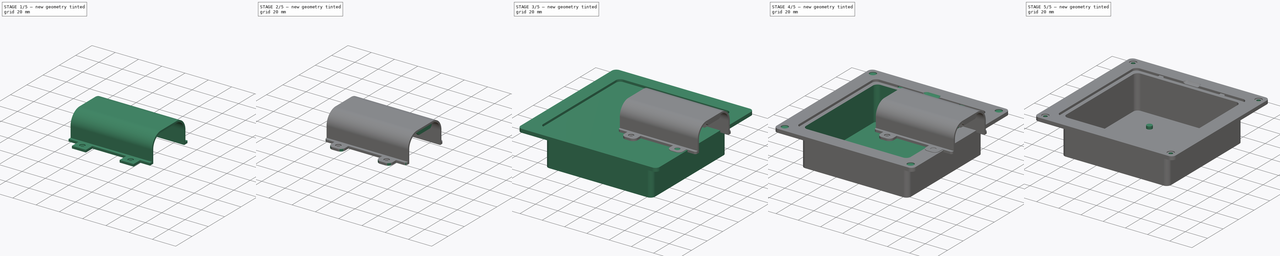
[diagram: build sequence overview — one tinted view per stage of 5, left to right]
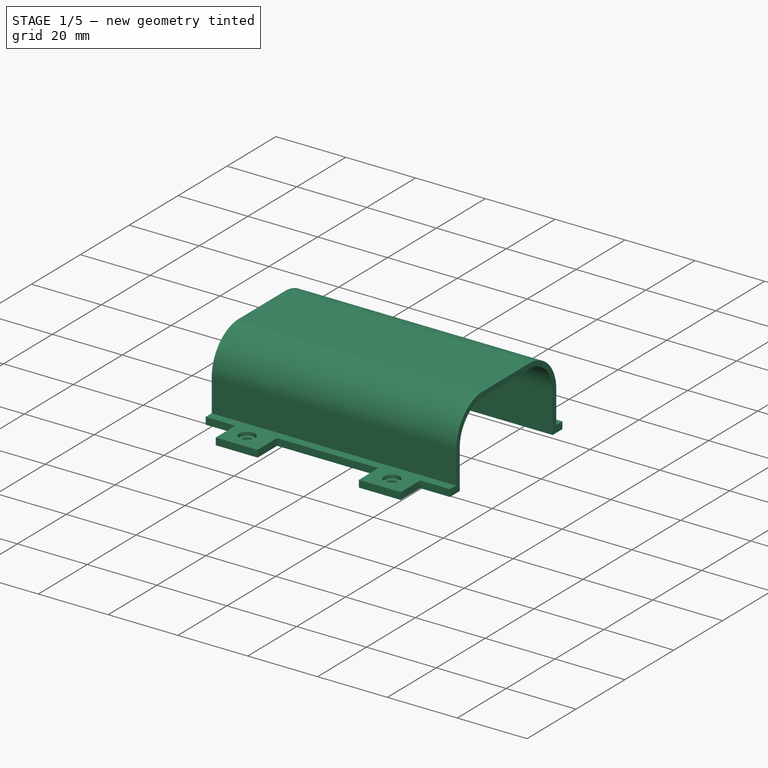
[diagram: stage 1 of 5 — iso view after this stage's code; geometry added in this stage tinted green]
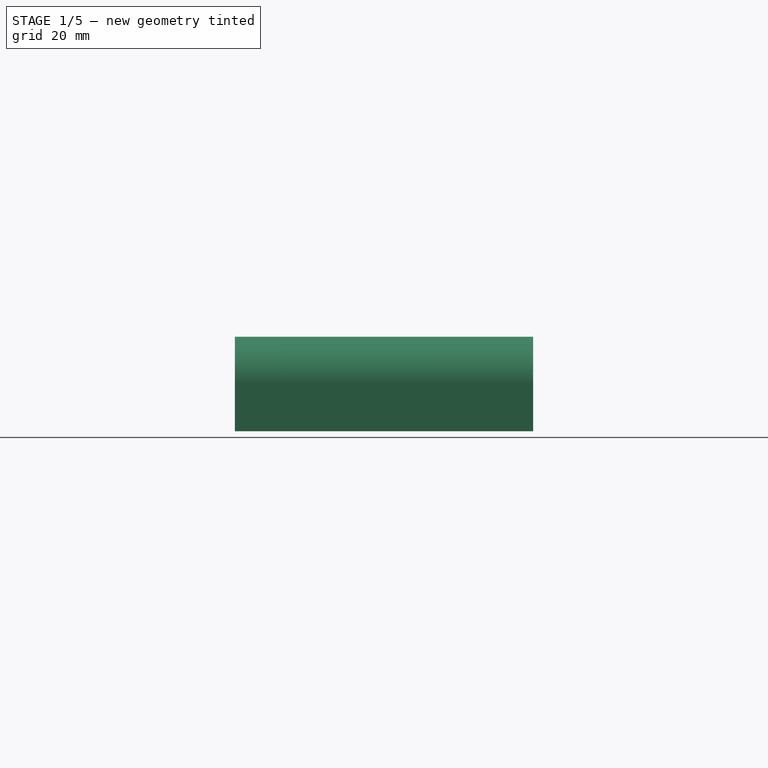
[diagram: stage 1 of 5 — front view after this stage's code; geometry added in this stage tinted green]
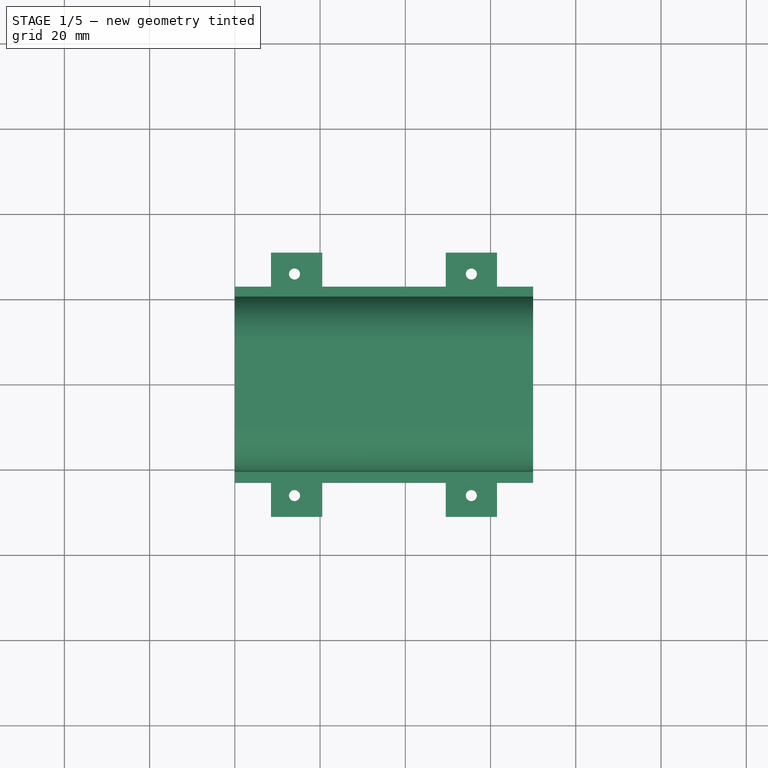
[diagram: stage 1 of 5 — top view after this stage's code; geometry added in this stage tinted green]
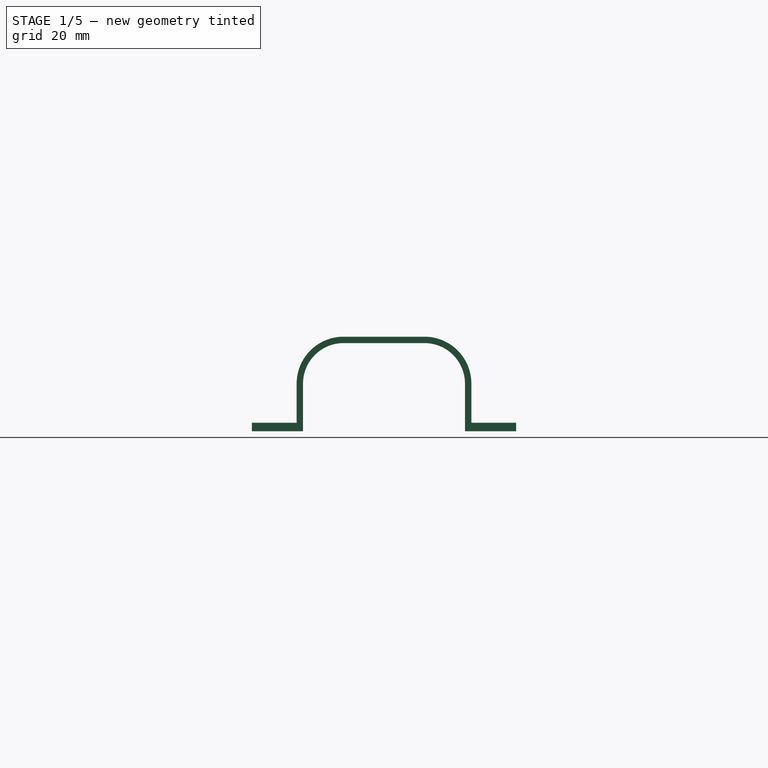
[diagram: stage 1 of 5 — right view after this stage's code; geometry added in this stage tinted green]
FCSTD DOCUMENT  (FreeCAD 0.20R29603 (Git))
Label: BackPocket
License: All rights reserved
LicenseURL: http://en.wikipedia.org/wiki/All_rights_reserved
objects: Sketcher::SketchObject×18, PartDesign::Pocket×11, PartDesign::Pad×6, PartDesign::Fillet×3, PartDesign::Body×2, PartDesign::Groove×1, PartDesign::LinearPattern×1, PartDesign::SubShapeBinder×1
note: 64 computed .brp shape members not serialized (recipe doc carries the construction recipe); baked Part::Feature solids carry a one-line shape summary decoded from their .brp

FEATURE [Sketcher::SketchObject] Sketch022
  FullyConstrained = true
  MapMode = 5
  Placement = pos=(0,0,0) rot=(0.57735,0.57735,0.57735;2.0944rad)
  Support = -> [YZ_Plane001]
  sketch-geometry (16):
    g0: ArcOfCircle CenterX=9.5 CenterY=11.2 CenterZ=0 NormalX=0 NormalY=0 NormalZ=1 AngleXU=0 Radius=9.5 StartAngle=2.1e-15 EndAngle=1.5708
    g1: ArcOfCircle CenterX=-9.5 CenterY=11.2 CenterZ=0 NormalX=0 NormalY=0 NormalZ=1 AngleXU=0 Radius=9.5 StartAngle=1.5708 EndAngle=3.14159
    g2: LineSegment StartX=-9.5 StartY=20.7 StartZ=0 EndX=9.5 EndY=20.7 EndZ=0
    g3: LineSegment StartX=-9.5 StartY=22.2 StartZ=0 EndX=9.5 EndY=22.2 EndZ=0
    g4: LineSegment StartX=-19 StartY=11.2 StartZ=0 EndX=-19 EndY=0 EndZ=0
    g5: LineSegment StartX=-31 StartY=0 StartZ=0 EndX=-31 EndY=2 EndZ=0
    g6: LineSegment StartX=-31 StartY=2 StartZ=0 EndX=-20.5 EndY=2 EndZ=0
    g7: LineSegment StartX=-20.5 StartY=2 StartZ=0 EndX=-20.5 EndY=11.2 EndZ=0
    g8: LineSegment StartX=19 StartY=11.2 StartZ=0 EndX=19 EndY=0 EndZ=0
    g9: LineSegment StartX=-19 StartY=0 StartZ=0 EndX=-31 EndY=0 EndZ=0
    g10: LineSegment StartX=19 StartY=0 StartZ=0 EndX=31 EndY=0 EndZ=0
    g11: LineSegment StartX=31 StartY=0 StartZ=0 EndX=31 EndY=2 EndZ=0
    g12: LineSegment StartX=31 StartY=2 StartZ=0 EndX=20.5 EndY=2 EndZ=0
    g13: LineSegment StartX=20.5 StartY=2 StartZ=0 EndX=20.5 EndY=11.2 EndZ=0
    g14: ArcOfCircle CenterX=-9.5 CenterY=11.2 CenterZ=0 NormalX=0 NormalY=0 NormalZ=1 AngleXU=0 Radius=11 StartAngle=1.5708 EndAngle=3.14159
    g15: ArcOfCircle CenterX=9.5 CenterY=11.2 CenterZ=0 NormalX=0 NormalY=0 NormalZ=1 AngleXU=0 Radius=11 StartAngle=0 EndAngle=1.5708
  constraints (38):
    c: Equal(g0,g1)
    c: Diameter(g0) = 19
    c: Horizontal(g3)
    c: DistanceY(g-1,g1) = 11.2
    c: PointOnObject(g4,g-1)
    c: PointOnObject(g5,g-1)
    c: Vertical(g5)
    c: Coincident(g6,g5)
    c: Horizontal(g6)
    c: Coincident(g7,g6)
    c: Coincident(g9,g4)
    c: Coincident(g9,g5)
    c: Coincident(g10,g8)
    c: PointOnObject(g10,g-1)
    c: Vertical(g11)
    c: Tangent(g1,g2) = 1.5708
    c: Tangent(g0,g2) = 1.5708
    c: Symmetric(g1,g0,g-2)
    c: DistanceX(g1,g0) = 19
    c: Diameter(g15) = 22
    c: Coincident(g14,g1)
    c: Coincident(g15,g0)
    c: Tangent(g3,g14) = 1.5708
    c: Tangent(g3,g15) = 1.5708
    c: Tangent(g15,g13) = -1.5708
    c: Tangent(g7,g14) = 1.5708
    c: Tangent(g1,g4) = -1.5708
    c: Tangent(g0,g8) = 1.5708
    c: Symmetric(g4,g8,g-2)
    c: Vertical(g4)
    c: Symmetric(g6,g12,g-2)
    c: Vertical(g7)
    c: Coincident(g13,g12)
    c: Coincident(g12,g11)
    c: Coincident(g10,g11)
    c: Symmetric(g5,g11,g-2)
    c: DistanceX(g8,g10) = 12
    c: DistanceY(g10,g11) = 2
FEATURE [PartDesign::Pad] Pad006
  Direction = (1,-2e-16,3e-16)
  Length = 70
  Length2 = 10
  Placement = pos=(0,0,0) rot=(0.57735,0.57735,0.57735;2.0944rad)
  Profile = -> Sketch022
  ReferenceAxis = -> Sketch022 [N_Axis]
  Type = 0
FEATURE [Sketcher::SketchObject] Sketch023
  ExternalGeometry = -> [Pad006]
  FullyConstrained = true
  MapMode = 5
  Placement = pos=(-6e-16,9e-16,2) rot=(0,0,-1;1.5708rad)
  Support = -> [Pad006]
  sketch-geometry (24):
    g0: LineSegment StartX=23 StartY=73 StartZ=0 EndX=23 EndY=61.5 EndZ=0
    g1: LineSegment StartX=35 StartY=61.5 StartZ=0 EndX=35 EndY=49.5 EndZ=0
    g2: LineSegment StartX=35 StartY=49.5 StartZ=0 EndX=23 EndY=49.5 EndZ=0
    g3: LineSegment StartX=23 StartY=49.5 StartZ=0 EndX=23 EndY=20.5 EndZ=0
    g4: LineSegment StartX=23 StartY=20.5 StartZ=0 EndX=35 EndY=20.5 EndZ=0
    g5: LineSegment StartX=35 StartY=20.5 StartZ=0 EndX=35 EndY=8.5 EndZ=0
    g6: LineSegment StartX=35 StartY=8.5 StartZ=0 EndX=23 EndY=8.5 EndZ=0
    g7: LineSegment StartX=23 StartY=8.5 StartZ=0 EndX=23 EndY=-3 EndZ=0
    g8: LineSegment StartX=23 StartY=-3 StartZ=0 EndX=46 EndY=-3 EndZ=0
    g9: LineSegment StartX=46 StartY=-3 StartZ=0 EndX=46 EndY=73 EndZ=0
    g10: LineSegment StartX=46 StartY=73 StartZ=0 EndX=23 EndY=73 EndZ=0
    g11: LineSegment StartX=23 StartY=61.5 StartZ=0 EndX=35 EndY=61.5 EndZ=0
    g12: LineSegment StartX=-46 StartY=73 StartZ=0 EndX=-23 EndY=73 EndZ=0
    g13: LineSegment StartX=-23 StartY=73 StartZ=0 EndX=-23 EndY=61.5 EndZ=0
    g14: LineSegment StartX=-35 StartY=61.5 StartZ=0 EndX=-35 EndY=49.5 EndZ=0
    g15: LineSegment StartX=-23 StartY=61.5 StartZ=0 EndX=-35 EndY=61.5 EndZ=0
    g16: LineSegment StartX=-23 StartY=49.5 StartZ=0 EndX=-23 EndY=20.5 EndZ=0
    g17: LineSegment StartX=-23 StartY=20.5 StartZ=0 EndX=-35 EndY=20.5 EndZ=0
    g18: LineSegment StartX=-35 StartY=20.5 StartZ=0 EndX=-35 EndY=8.5 EndZ=0
    g19: LineSegment StartX=-35 StartY=8.5 StartZ=0 EndX=-23 EndY=8.5 EndZ=0
    g20: LineSegment StartX=-23 StartY=8.5 StartZ=0 EndX=-23 EndY=-3 EndZ=0
    g21: LineSegment StartX=-23 StartY=-3 StartZ=0 EndX=-46 EndY=-3 EndZ=0
    g22: LineSegment StartX=-46 StartY=-3 StartZ=0 EndX=-46 EndY=73 EndZ=0
    g23: LineSegment StartX=-35 StartY=49.5 StartZ=0 EndX=-23 EndY=49.5 EndZ=0
  constraints (72):
    c: Vertical(g0)
    c: Vertical(g1)
    c: Coincident(g1,g2)
    c: Horizontal(g2)
    c: Coincident(g2,g3)
    c: Vertical(g3)
    c: Coincident(g3,g4)
    c: Horizontal(g4)
    c: Coincident(g4,g5)
    c: Vertical(g5)
    c: Coincident(g5,g6)
    c: Horizontal(g6)
    c: Coincident(g6,g7)
    c: Vertical(g7)
    c: Coincident(g7,g8)
    c: Horizontal(g8)
    c: Coincident(g8,g9)
    c: Vertical(g9)
    c: Coincident(g9,g10)
    c: Coincident(g10,g0)
    c: Horizontal(g10)
    c: DistanceX(g-1,g7) = 23
    c: Vertical(g6,g3)
    c: Vertical(g3,g0)
    c: DistanceY(g5,g4) = 12
    c: Equal(g5,g1)
    c: Vertical(g1,g5)
    c: DistanceX(g2,g1) = 12
    c: DistanceX(g0,g9) = 23
    c: DistanceY(g8,g9) = 76
    c: Equal(g7,g0)
    c: DistanceY(g3,g3) = 29
    c: DistanceY(g7,g-1) = 3
    c: Coincident(g11,g0)
    c: Coincident(g11,g1)
    c: Horizontal(g11)
    c: Vertical(g13)
    c: Vertical(g14)
    c: Vertical(g16)
    c: Coincident(g16,g17)
    c: Horizontal(g17)
    c: Coincident(g17,g18)
    c: Vertical(g18)
    c: Coincident(g18,g19)
    c: Horizontal(g19)
    c: Coincident(g19,g20)
    c: Vertical(g20)
    c: Coincident(g20,g21)
    c: Horizontal(g21)
    c: Coincident(g21,g22)
    c: Vertical(g22)
    c: Coincident(g22,g12)
    c: Coincident(g12,g13)
    c: Horizontal(g12)
    c: Equal(g18,g14)
    c: Equal(g20,g13)
    c: Coincident(g15,g13)
    c: Coincident(g15,g14)
    c: Horizontal(g15)
    c: Coincident(g23,g14)
    c: Coincident(g23,g16)
    c: Horizontal(g23)
    c: Equal(g10,g12)
    c: Equal(g22,g9)
    c: Equal(g21,g8)
    c: Equal(g20,g7)
    c: Equal(g19,g6)
    c: Equal(g16,g3)
    c: Equal(g23,g2)
    c: Vertical(g13,g16)
    c: DistanceX(g20,g-1) = 23
    c: Horizontal(g19,g6)
FEATURE [PartDesign::Pocket] Pocket014
  BaseFeature = -> Pad006
  Direction = (4e-16,-6e-16,-1)
  Length = 5
  Length2 = 5
  Placement = pos=(0,0,0) rot=(0.57735,0.57735,0.57735;2.0944rad)
  Profile = -> Sketch023
  ReferenceAxis = -> Sketch023 [N_Axis]
  Type = 1
FEATURE [Sketcher::SketchObject] Sketch024
  FullyConstrained = true
  MapMode = 5
  Placement = pos=(-6e-16,9e-16,2) rot=(0,0,-1;1.5708rad)
  Support = -> [Pocket014]
  sketch-geometry (4):
    g0: Circle CenterX=26 CenterY=14 CenterZ=0 NormalX=0 NormalY=0 NormalZ=1 AngleXU=0 Radius=1.3
    g1: Circle CenterX=-26 CenterY=14 CenterZ=0 NormalX=0 NormalY=0 NormalZ=1 AngleXU=0 Radius=1.3
    g2: Circle CenterX=26 CenterY=55.5 CenterZ=0 NormalX=0 NormalY=0 NormalZ=1 AngleXU=0 Radius=1.3
    g3: Circle CenterX=-26 CenterY=55.5 CenterZ=0 NormalX=0 NormalY=0 NormalZ=1 AngleXU=0 Radius=1.3
  constraints (10):
    c: DistanceX(g-1,g0) = 26
    c: Vertical(g2,g0)
    c: Symmetric(g0,g1,g-2)
    c: Symmetric(g2,g3,g-2)
    c: DistanceY(g-1,g0) = 14
    c: DistanceY(g0,g2) = 41.5
    c: Equal(g2,g0)
    c: Equal(g0,g3)
    c: Equal(g3,g1)
    c: Diameter(g2) = 2.6
FEATURE [PartDesign::Pocket] Pocket001
  BaseFeature = -> Pocket014
  Direction = (7e-16,-7e-16,-1)
  Length = 5
  Length2 = 5
  Placement = pos=(0,0,0) rot=(0.57735,0.57735,0.57735;2.0944rad)
  Profile = -> Sketch024
  ReferenceAxis = -> Sketch024 [N_Axis]
  Type = 1
FEATURE [Sketcher::SketchObject] Sketch025
  ExternalGeometry = -> [Pocket001]
  FullyConstrained = true
  MapMode = 5
  Placement = pos=(-6e-16,9e-16,2) rot=(0,0,-1;1.5708rad)
  Support = -> [Pocket001]
  sketch-geometry (4):
    g0: Circle CenterX=26 CenterY=55.5 CenterZ=0 NormalX=0 NormalY=0 NormalZ=1 AngleXU=0 Radius=2.25
    g1: Circle CenterX=26 CenterY=14 CenterZ=0 NormalX=0 NormalY=0 NormalZ=1 AngleXU=0 Radius=2.25
    g2: Circle CenterX=-26 CenterY=55.5 CenterZ=0 NormalX=0 NormalY=0 NormalZ=1 AngleXU=0 Radius=2.25
    g3: Circle CenterX=-26 CenterY=14 CenterZ=0 NormalX=0 NormalY=0 NormalZ=1 AngleXU=0 Radius=2.25
  constraints (8):
    c: Coincident(g0,g-3)
    c: Coincident(g1,g-4)
    c: Coincident(g2,g-5)
    c: Coincident(g3,g-6)
    c: Equal(g0,g1)
    c: Equal(g1,g3)
    c: Equal(g3,g2)
    c: Diameter(g0) = 4.5
FEATURE [PartDesign::Pocket] Pocket015
  BaseFeature = -> Pocket001
  Direction = (1.1e-15,-8e-16,-1)
  Length = 1
  Length2 = 5
  Placement = pos=(0,0,0) rot=(0.57735,0.57735,0.57735;2.0944rad)
  Profile = -> Sketch025
  ReferenceAxis = -> Sketch025 [N_Axis]
  Type = 0
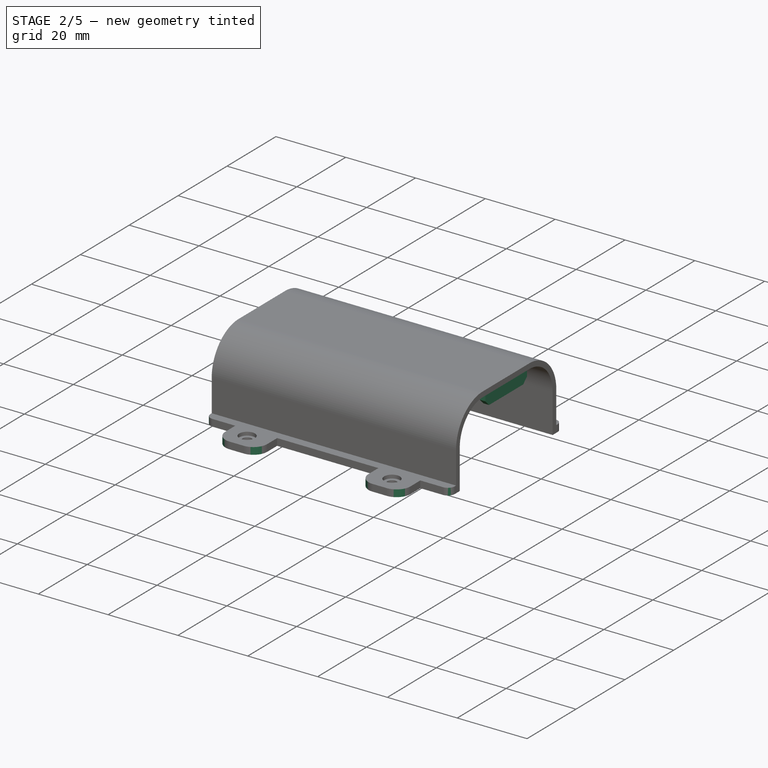
[diagram: stage 2 of 5 — iso view after this stage's code; geometry added in this stage tinted green]
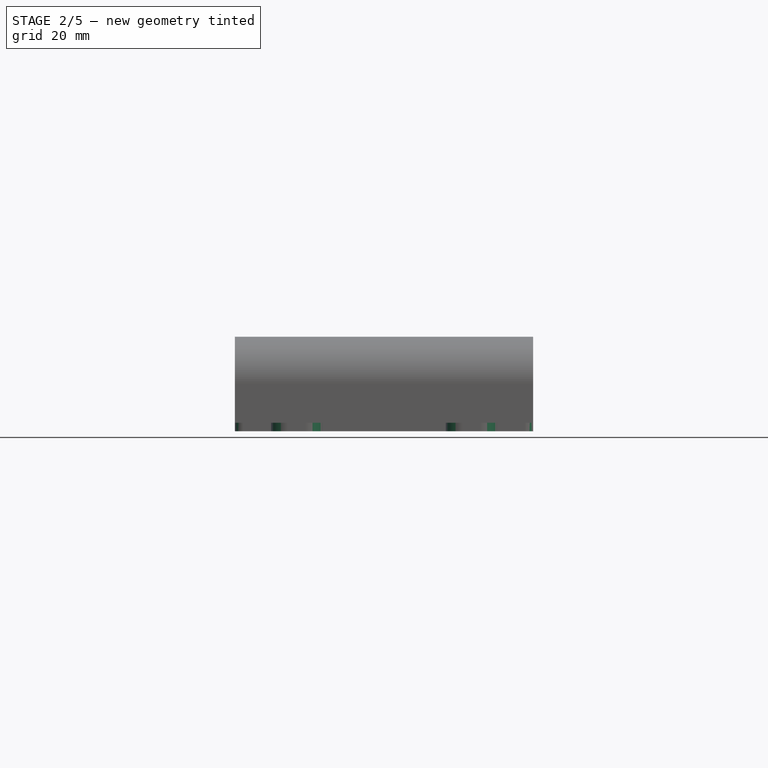
[diagram: stage 2 of 5 — front view after this stage's code; geometry added in this stage tinted green]
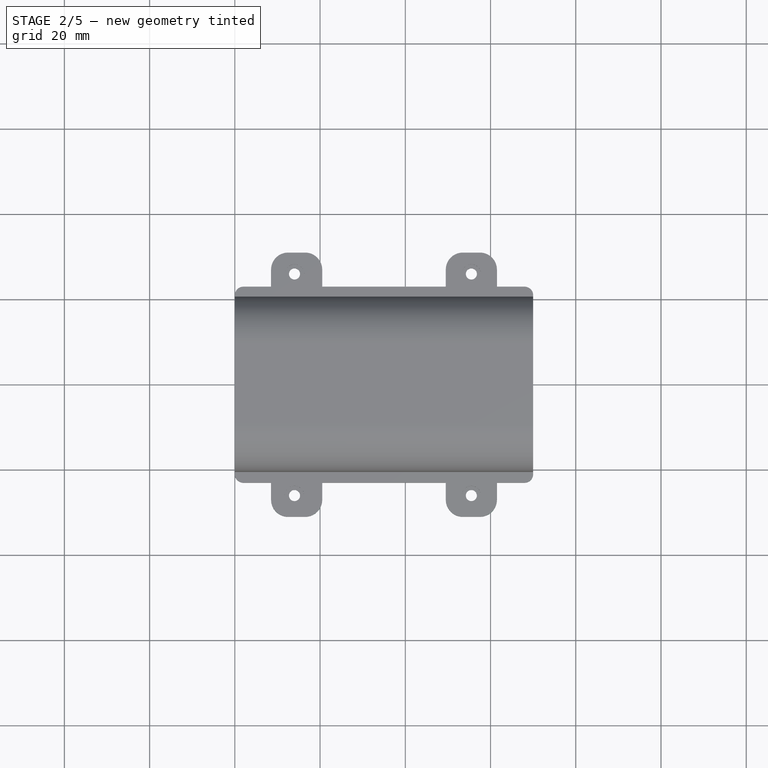
[diagram: stage 2 of 5 — top view after this stage's code; geometry added in this stage tinted green]
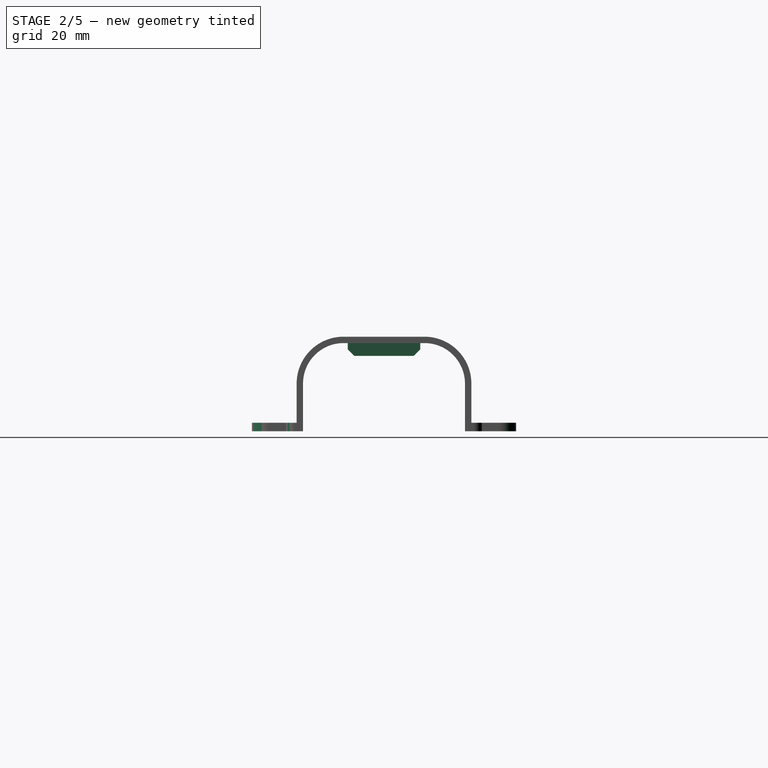
[diagram: stage 2 of 5 — right view after this stage's code; geometry added in this stage tinted green]
FEATURE [Sketcher::SketchObject] Sketch026
  ExternalGeometry = -> [Pocket015]
  FullyConstrained = true
  MapMode = 5
  Placement = pos=(0,0,0) rot=(0.57735,0.57735,0.57735;2.0944rad)
  Support = -> [YZ_Plane001]
  sketch-geometry (6):
    g0: LineSegment StartX=-8.5 StartY=21.7 StartZ=0 EndX=8.5 EndY=21.7 EndZ=0
    g1: LineSegment StartX=-8.5 StartY=21.7 StartZ=0 EndX=-8.5 EndY=19.2 EndZ=0
    g2: LineSegment StartX=-8.5 StartY=19.2 StartZ=0 EndX=-7 EndY=17.7 EndZ=0
    g3: LineSegment StartX=-7 StartY=17.7 StartZ=0 EndX=7 EndY=17.7 EndZ=0
    g4: LineSegment StartX=7 StartY=17.7 StartZ=0 EndX=8.5 EndY=19.2 EndZ=0
    g5: LineSegment StartX=8.5 StartY=19.2 StartZ=0 EndX=8.5 EndY=21.7 EndZ=0
  constraints (16):
    c: Coincident(g1,g0)
    c: Vertical(g1)
    c: Coincident(g5,g0)
    c: Coincident(g4,g5)
    c: Vertical(g5)
    c: Symmetric(g0,g0,g-2)
    c: Coincident(g1,g2)
    c: Coincident(g2,g3)
    c: Coincident(g4,g3)
    c: DistanceY(g-3,g0) = 1
    c: DistanceX(g-3,g0) = 1
    c: Symmetric(g2,g3,g-2)
    c: DistanceY(g1,g0) = 2.5
    c: Equal(g5,g1)
    c: DistanceY(g3,g0) = 4
    c: DistanceX(g2,g3) = 14
FEATURE [PartDesign::Pad] Pad007
  BaseFeature = -> Pocket015
  Direction = (1,-2e-16,3e-16)
  Length = 1.6
  Length2 = 10
  Placement = pos=(0,0,0) rot=(0.57735,0.57735,0.57735;2.0944rad)
  Profile = -> Sketch026
  ReferenceAxis = -> Sketch026 [N_Axis]
  Type = 0
FEATURE [PartDesign::LinearPattern] LinearPattern
  BaseFeature = -> Pad007
  Direction = -> X_Axis001
  Length = 68.4
  Occurrences = 2
  Originals = -> [Pad007]
  Placement = pos=(0,0,0) rot=(0.57735,0.57735,0.57735;2.0944rad)
FEATURE [PartDesign::Fillet] Fillet001
  Base = -> LinearPattern [Edge49,Edge41,Edge25,Edge33]
  BaseFeature = -> LinearPattern
  Placement = pos=(0,0,0) rot=(0.57735,0.57735,0.57735;2.0944rad)
  Radius = 2
  SupportTransform = false
  UseAllEdges = false
FEATURE [PartDesign::Fillet] Fillet002
  Base = -> Fillet001 [Edge115,Edge117,Edge122,Edge120]
  BaseFeature = -> Fillet001
  Placement = pos=(0,0,0) rot=(0.57735,0.57735,0.57735;2.0944rad)
  Radius = 4
  SupportTransform = false
  UseAllEdges = false
FEATURE [PartDesign::Fillet] Fillet003
  Base = -> Fillet002 [Edge173,Edge171,Edge168,Edge167]
  BaseFeature = -> Fillet002
  Placement = pos=(0,0,0) rot=(0.57735,0.57735,0.57735;2.0944rad)
  Radius = 4
  SupportTransform = false
  UseAllEdges = false
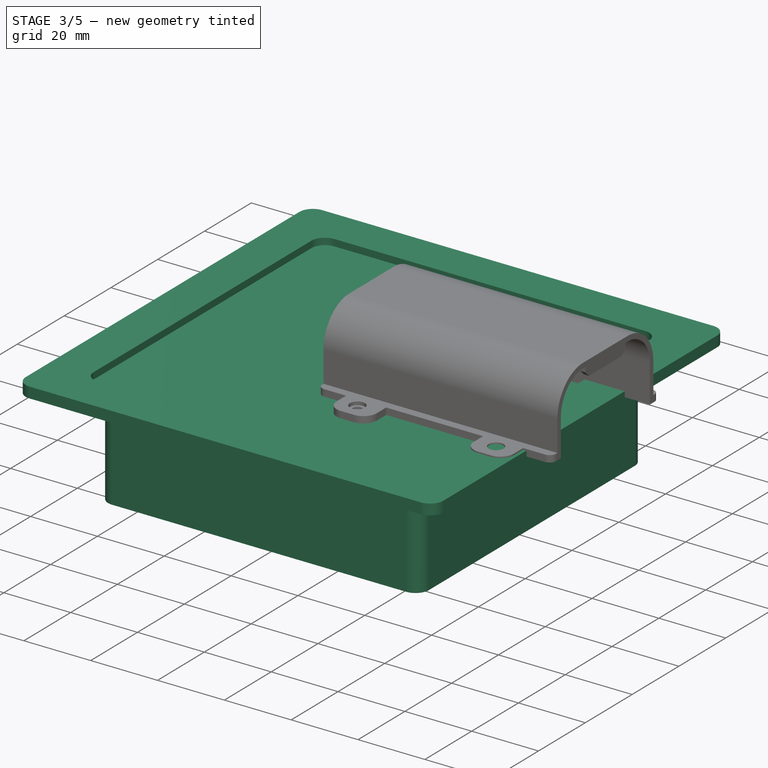
[diagram: stage 3 of 5 — iso view after this stage's code; geometry added in this stage tinted green]
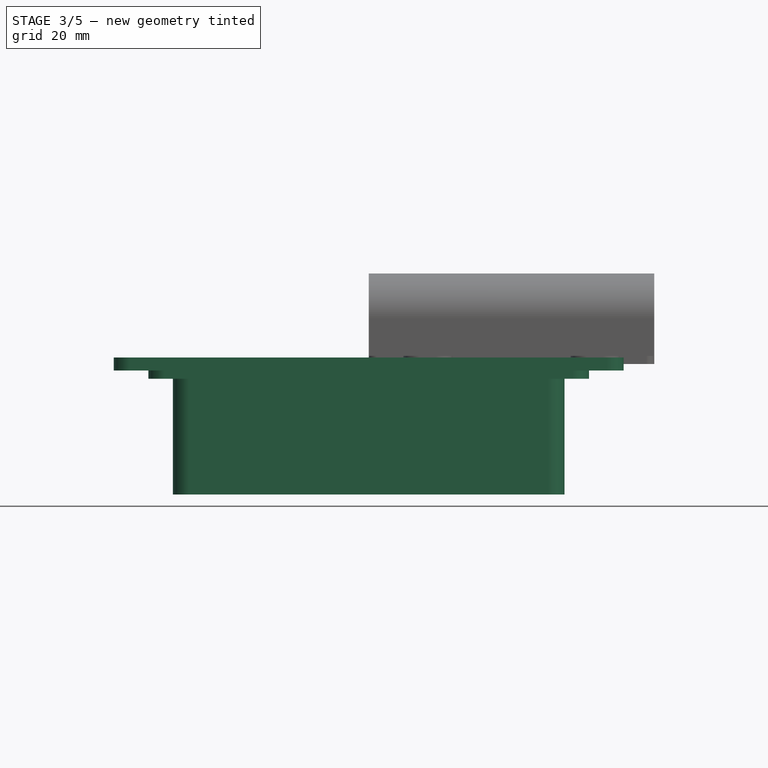
[diagram: stage 3 of 5 — front view after this stage's code; geometry added in this stage tinted green]
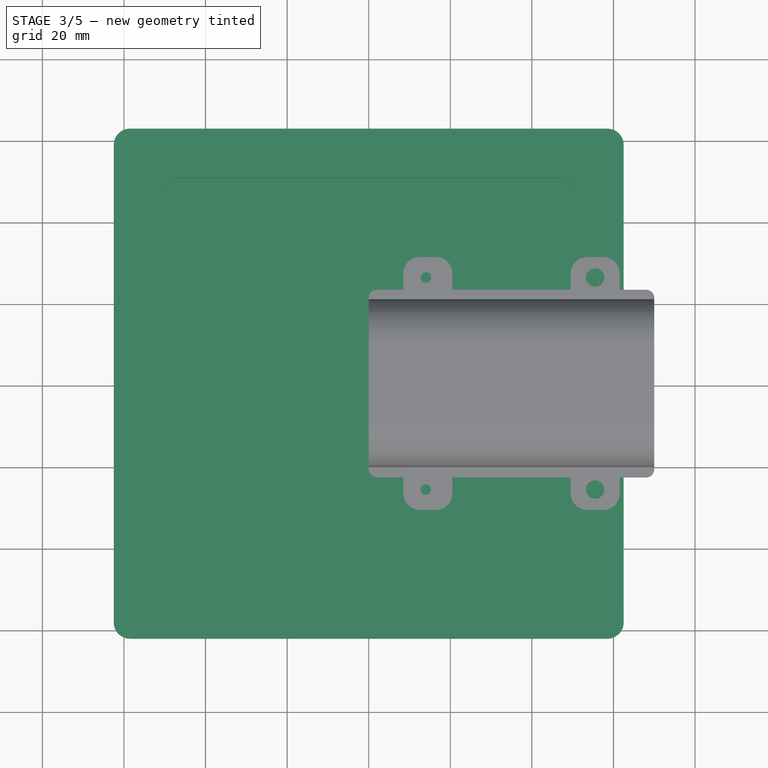
[diagram: stage 3 of 5 — top view after this stage's code; geometry added in this stage tinted green]
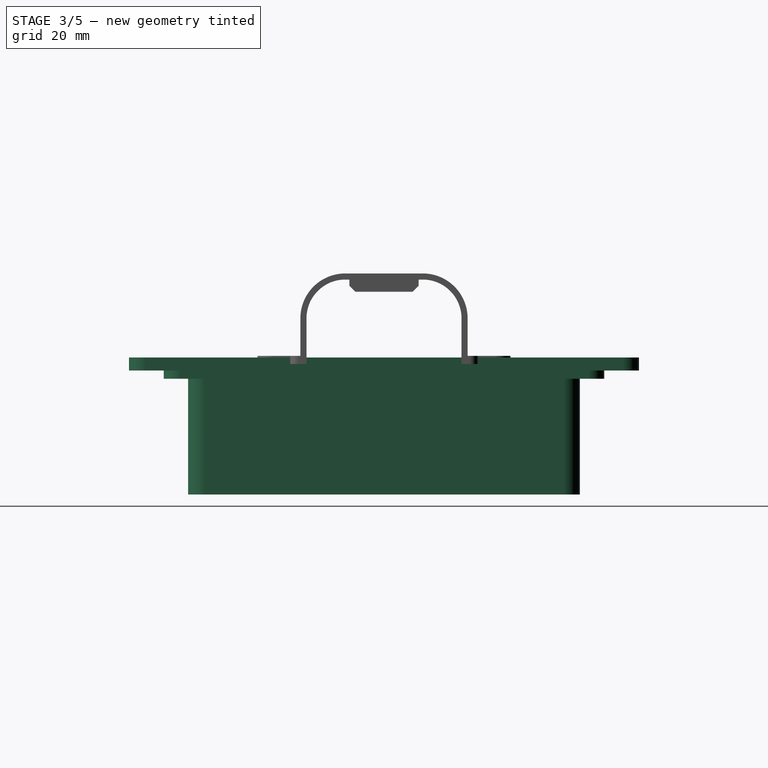
[diagram: stage 3 of 5 — right view after this stage's code; geometry added in this stage tinted green]
FEATURE [Sketcher::SketchObject] Sketch
  FullyConstrained = true
  MapMode = 5
  Support = -> [XY_Plane]
  sketch-geometry (8):
    g0: LineSegment StartX=-58.5 StartY=62.5 StartZ=0 EndX=58.5 EndY=62.5 EndZ=0
    g1: LineSegment StartX=62.5 StartY=58.5 StartZ=0 EndX=62.5 EndY=-58.5 EndZ=0
    g2: LineSegment StartX=58.5 StartY=-62.5 StartZ=0 EndX=-58.5 EndY=-62.5 EndZ=0
    g3: LineSegment StartX=-62.5 StartY=-58.5 StartZ=0 EndX=-62.5 EndY=58.5 EndZ=0
    g4: ArcOfCircle CenterX=-58.5 CenterY=58.5 CenterZ=0 NormalX=0 NormalY=0 NormalZ=1 AngleXU=0 Radius=4 StartAngle=1.5708 EndAngle=3.14159
    g5: ArcOfCircle CenterX=58.5 CenterY=58.5 CenterZ=0 NormalX=0 NormalY=0 NormalZ=1 AngleXU=0 Radius=4 StartAngle=-9e-16 EndAngle=1.5708
    g6: ArcOfCircle CenterX=58.5 CenterY=-58.5 CenterZ=0 NormalX=0 NormalY=0 NormalZ=1 AngleXU=0 Radius=4 StartAngle=4.71239 EndAngle=6.28319
    g7: ArcOfCircle CenterX=-58.5 CenterY=-58.5 CenterZ=0 NormalX=0 NormalY=0 NormalZ=1 AngleXU=0 Radius=4 StartAngle=3.14159 EndAngle=4.71239
  constraints (18):
    c: Horizontal(g2)
    c: Vertical(g1)
    c: Vertical(g3)
    c: Tangent(g3,g4) = 1.5708
    c: Tangent(g0,g4) = 1.5708
    c: Tangent(g0,g5) = 1.5708
    c: Tangent(g1,g5) = 1.5708
    c: Tangent(g1,g6) = 1.5708
    c: Tangent(g2,g6) = 1.5708
    c: Tangent(g2,g7) = 1.5708
    c: Tangent(g3,g7) = 1.5708
    c: Equal(g4,g5)
    c: Equal(g5,g6)
    c: Diameter(g5) = 8
    c: DistanceX(g3,g1) = 125
    c: DistanceY(g2,g0) = 125
    c: Symmetric(g0,g0,g-2)
    c: Symmetric(g0,g2,g-1)
FEATURE [PartDesign::Pad] Pad  label="Flange"
  Direction = (0,0,1)
  Length = 3.2
  Length2 = 10
  Midplane = true
  Profile = -> Sketch
  ReferenceAxis = -> Sketch [N_Axis]
  Type = 0
FEATURE [Sketcher::SketchObject] Sketch001
  FullyConstrained = true
  MapMode = 5
  Placement = pos=(0,0,-1.6) rot=(1,0,0;3.14159rad)
  Support = -> [Pad]
  sketch-geometry (8):
    g0: LineSegment StartX=-50 StartY=54 StartZ=0 EndX=50 EndY=54 EndZ=0
    g1: LineSegment StartX=54 StartY=50 StartZ=0 EndX=54 EndY=-50 EndZ=0
    g2: LineSegment StartX=50 StartY=-54 StartZ=0 EndX=-50 EndY=-54 EndZ=0
    g3: LineSegment StartX=-54 StartY=-50 StartZ=0 EndX=-54 EndY=50 EndZ=0
    g4: ArcOfCircle CenterX=-50 CenterY=50 CenterZ=0 NormalX=0 NormalY=0 NormalZ=1 AngleXU=0 Radius=4 StartAngle=1.5708 EndAngle=3.14159
    g5: ArcOfCircle CenterX=50 CenterY=50 CenterZ=0 NormalX=0 NormalY=0 NormalZ=1 AngleXU=0 Radius=4 StartAngle=1.31e-14 EndAngle=1.5708
    g6: ArcOfCircle CenterX=50 CenterY=-50 CenterZ=0 NormalX=0 NormalY=0 NormalZ=1 AngleXU=0 Radius=4 StartAngle=4.71239 EndAngle=6.28319
    g7: ArcOfCircle CenterX=-50 CenterY=-50 CenterZ=0 NormalX=0 NormalY=0 NormalZ=1 AngleXU=0 Radius=4 StartAngle=3.14159 EndAngle=4.71239
  constraints (18):
    c: Horizontal(g0)
    c: Horizontal(g2)
    c: Vertical(g3)
    c: Tangent(g3,g4) = 1.5708
    c: Tangent(g0,g4) = 1.5708
    c: Tangent(g0,g5) = 1.5708
    c: Tangent(g1,g5) = 1.5708
    c: Tangent(g1,g6) = 1.5708
    c: Tangent(g2,g6) = 1.5708
    c: Tangent(g2,g7) = 1.5708
    c: Tangent(g3,g7) = 1.5708
    c: Equal(g5,g7)
    c: Equal(g7,g6)
    c: Symmetric(g3,g1,g-2)
    c: Symmetric(g1,g1,g-1)
    c: DistanceY(g2,g0) = 108
    c: DistanceX(g3,g1) = 108
    c: Diameter(g4) = 8
FEATURE [PartDesign::Pad] Pad001  label="CopoBase"
  BaseFeature = -> Pad
  Direction = (0,0,-1)
  Length = 2
  Length2 = 10
  Profile = -> Sketch001
  ReferenceAxis = -> Sketch001 [N_Axis]
  Type = 0
FEATURE [Sketcher::SketchObject] Sketch002
  FullyConstrained = true
  MapMode = 5
  Placement = pos=(0,0,-3.6) rot=(1,0,0;3.14159rad)
  Support = -> [Pad001]
  sketch-geometry (8):
    g0: LineSegment StartX=-44 StartY=48 StartZ=0 EndX=44 EndY=48 EndZ=0
    g1: LineSegment StartX=48 StartY=44 StartZ=0 EndX=48 EndY=-44 EndZ=0
    g2: LineSegment StartX=44 StartY=-48 StartZ=0 EndX=-44 EndY=-48 EndZ=0
    g3: LineSegment StartX=-48 StartY=-44 StartZ=0 EndX=-48 EndY=44 EndZ=0
    g4: ArcOfCircle CenterX=-44 CenterY=44 CenterZ=0 NormalX=0 NormalY=0 NormalZ=1 AngleXU=0 Radius=4 StartAngle=1.5708 EndAngle=3.14159
    g5: ArcOfCircle CenterX=44 CenterY=44 CenterZ=0 NormalX=0 NormalY=0 NormalZ=1 AngleXU=0 Radius=4 StartAngle=0 EndAngle=1.5708
    g6: ArcOfCircle CenterX=44 CenterY=-44 CenterZ=0 NormalX=0 NormalY=0 NormalZ=1 AngleXU=0 Radius=4 StartAngle=4.71239 EndAngle=6.28319
    g7: ArcOfCircle CenterX=-44 CenterY=-44 CenterZ=0 NormalX=0 NormalY=0 NormalZ=1 AngleXU=0 Radius=4 StartAngle=3.14159 EndAngle=4.71239
  constraints (18):
    c: Horizontal(g2)
    c: Vertical(g1)
    c: Tangent(g3,g4) = 1.5708
    c: Tangent(g0,g4) = 1.5708
    c: Tangent(g0,g5) = 1.5708
    c: Tangent(g1,g5) = 1.5708
    c: Tangent(g1,g6) = 1.5708
    c: Tangent(g2,g6) = 1.5708
    c: Tangent(g2,g7) = 1.5708
    c: Tangent(g3,g7) = 1.5708
    c: Equal(g4,g5)
    c: Equal(g5,g6)
    c: Equal(g6,g7)
    c: Symmetric(g0,g0,g-2)
    c: Symmetric(g3,g3,g-1)
    c: Diameter(g4) = 8
    c: DistanceY(g2,g0) = 96
    c: DistanceX(g3,g1) = 96
FEATURE [PartDesign::Pad] Pad002  label="CopoExtendido"
  BaseFeature = -> Pad001
  Direction = (0,0,-1)
  Length = 28.4
  Length2 = 10
  Profile = -> Sketch002
  ReferenceAxis = -> Sketch002 [N_Axis]
  Type = 0
FEATURE [Sketcher::SketchObject] Sketch003
  FullyConstrained = true
  MapMode = 5
  Placement = pos=(0,0,1.6) rot=(0,0,1;0rad)
  Support = -> [Pad002]
  sketch-geometry (8):
    g0: LineSegment StartX=-46.5 StartY=50.5 StartZ=0 EndX=46.5 EndY=50.5 EndZ=0
    g1: LineSegment StartX=50.5 StartY=46.5 StartZ=0 EndX=50.5 EndY=-46.5 EndZ=0
    g2: LineSegment StartX=46.5 StartY=-50.5 StartZ=0 EndX=-46.5 EndY=-50.5 EndZ=0
    g3: LineSegment StartX=-50.5 StartY=-46.5 StartZ=0 EndX=-50.5 EndY=46.5 EndZ=0
    g4: ArcOfCircle CenterX=-46.5 CenterY=46.5 CenterZ=0 NormalX=0 NormalY=0 NormalZ=1 AngleXU=0 Radius=4 StartAngle=1.5708 EndAngle=3.14159
    g5: ArcOfCircle CenterX=46.5 CenterY=46.5 CenterZ=0 NormalX=0 NormalY=0 NormalZ=1 AngleXU=0 Radius=4 StartAngle=-9e-16 EndAngle=1.5708
    g6: ArcOfCircle CenterX=46.5 CenterY=-46.5 CenterZ=0 NormalX=0 NormalY=0 NormalZ=1 AngleXU=0 Radius=4 StartAngle=4.71239 EndAngle=6.28319
    g7: ArcOfCircle CenterX=-46.5 CenterY=-46.5 CenterZ=0 NormalX=0 NormalY=0 NormalZ=1 AngleXU=0 Radius=4 StartAngle=3.14159 EndAngle=4.71239
  constraints (18):
    c: Horizontal(g2)
    c: Vertical(g1)
    c: Tangent(g3,g4) = 1.5708
    c: Tangent(g0,g4) = 1.5708
    c: Tangent(g0,g5) = 1.5708
    c: Tangent(g1,g5) = 1.5708
    c: Tangent(g1,g6) = 1.5708
    c: Tangent(g2,g6) = 1.5708
    c: Tangent(g2,g7) = 1.5708
    c: Tangent(g3,g7) = 1.5708
    c: Equal(g4,g5)
    c: Equal(g5,g6)
    c: Equal(g6,g7)
    c: Symmetric(g0,g0,g-2)
    c: Symmetric(g3,g3,g-1)
    c: Diameter(g4) = 8
    c: DistanceY(g2,g0) = 101
    c: DistanceX(g3,g1) = 101
FEATURE [PartDesign::Pocket] Pocket  label="CavaTampa"
  BaseFeature = -> Pad002
  Direction = (0,0,-1)
  Length = 2
  Length2 = 5
  Profile = -> Sketch003
  ReferenceAxis = -> Sketch003 [N_Axis]
  Type = 0
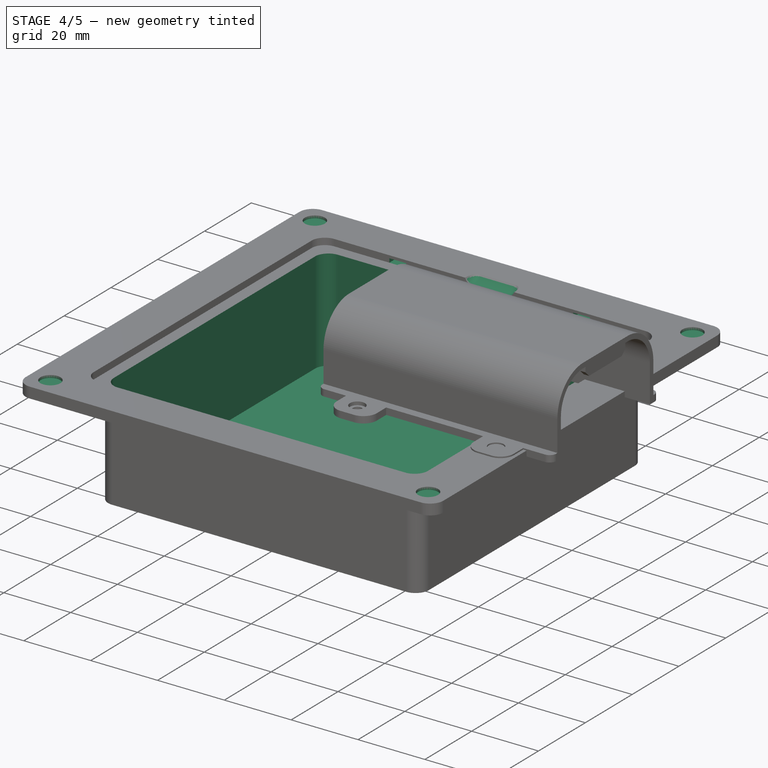
[diagram: stage 4 of 5 — iso view after this stage's code; geometry added in this stage tinted green]
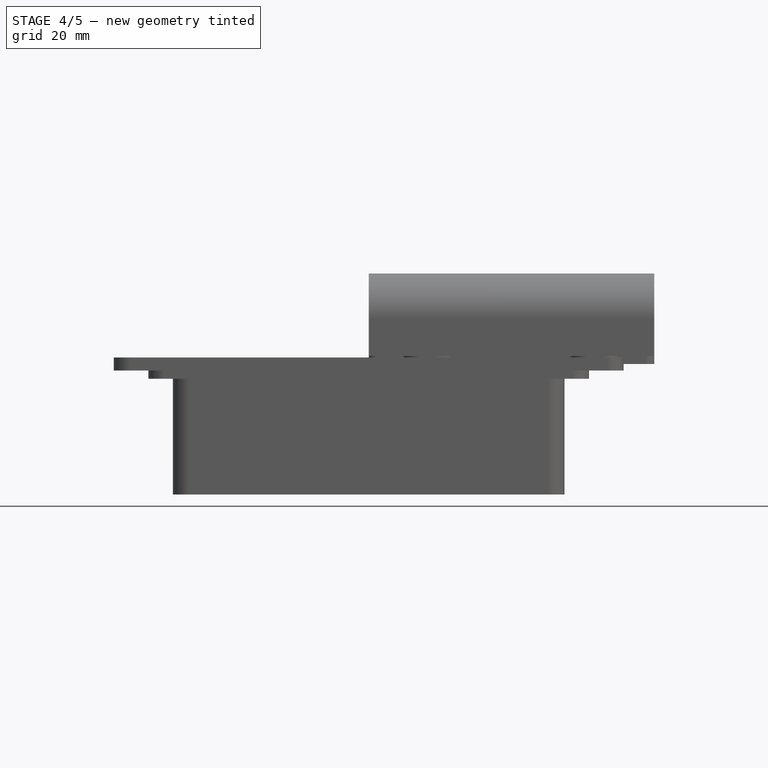
[diagram: stage 4 of 5 — front view after this stage's code; geometry added in this stage tinted green]
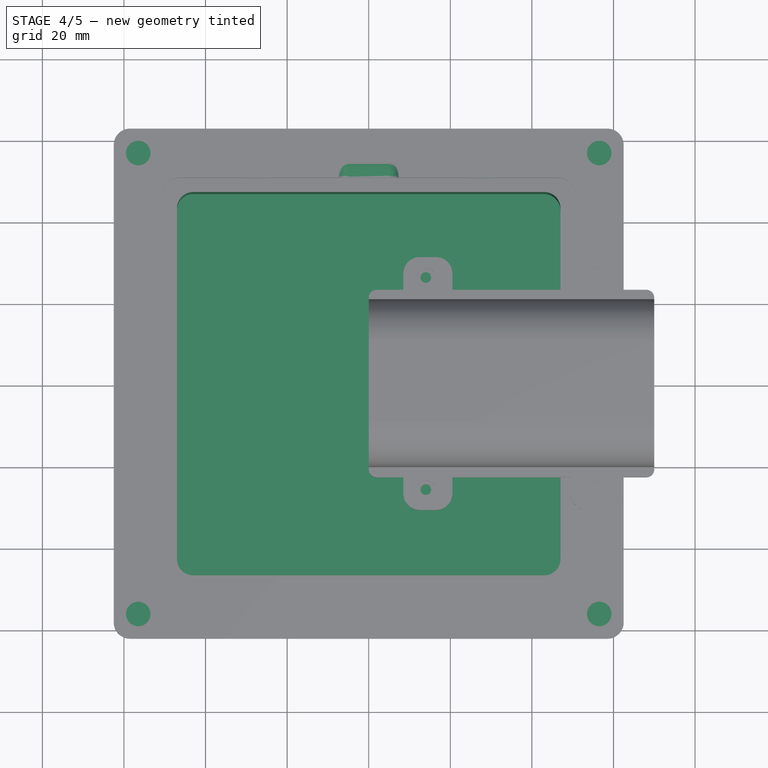
[diagram: stage 4 of 5 — top view after this stage's code; geometry added in this stage tinted green]
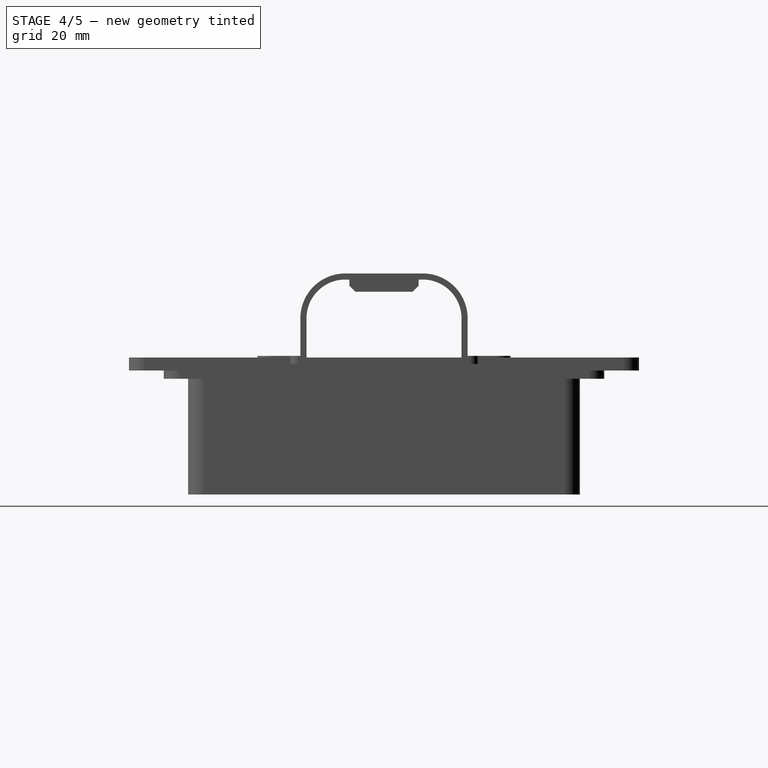
[diagram: stage 4 of 5 — right view after this stage's code; geometry added in this stage tinted green]
FEATURE [Sketcher::SketchObject] Sketch004
  FullyConstrained = true
  MapMode = 5
  Placement = pos=(0,0,-0.4) rot=(0,0,1;0rad)
  Support = -> [Pocket]
  sketch-geometry (8):
    g0: LineSegment StartX=-43 StartY=47 StartZ=0 EndX=43 EndY=47 EndZ=0
    g1: LineSegment StartX=47 StartY=43 StartZ=0 EndX=47 EndY=-43 EndZ=0
    g2: LineSegment StartX=43 StartY=-47 StartZ=0 EndX=-43 EndY=-47 EndZ=0
    g3: LineSegment StartX=-47 StartY=-43 StartZ=0 EndX=-47 EndY=43 EndZ=0
    g4: ArcOfCircle CenterX=-43 CenterY=43 CenterZ=0 NormalX=0 NormalY=0 NormalZ=1 AngleXU=0 Radius=4 StartAngle=1.5708 EndAngle=3.14159
    g5: ArcOfCircle CenterX=43 CenterY=43 CenterZ=0 NormalX=0 NormalY=0 NormalZ=1 AngleXU=0 Radius=4 StartAngle=0 EndAngle=1.5708
    g6: ArcOfCircle CenterX=43 CenterY=-43 CenterZ=0 NormalX=0 NormalY=0 NormalZ=1 AngleXU=0 Radius=4 StartAngle=4.71239 EndAngle=6.28319
    g7: ArcOfCircle CenterX=-43 CenterY=-43 CenterZ=0 NormalX=0 NormalY=0 NormalZ=1 AngleXU=0 Radius=4 StartAngle=3.14159 EndAngle=4.71239
  constraints (18):
    c: Horizontal(g2)
    c: Vertical(g1)
    c: Tangent(g3,g4) = 1.5708
    c: Tangent(g0,g4) = 1.5708
    c: Tangent(g0,g5) = 1.5708
    c: Tangent(g1,g5) = 1.5708
    c: Tangent(g1,g6) = 1.5708
    c: Tangent(g2,g6) = 1.5708
    c: Tangent(g2,g7) = 1.5708
    c: Tangent(g3,g7) = 1.5708
    c: Equal(g4,g5)
    c: Equal(g5,g6)
    c: Equal(g6,g7)
    c: Diameter(g4) = 8
    c: Symmetric(g3,g3,g-1)
    c: Symmetric(g0,g0,g-2)
    c: DistanceX(g3,g1) = 94
    c: DistanceY(g2,g0) = 94
FEATURE [Sketcher::SketchObject] Sketch005
  FullyConstrained = true
  MapMode = 5
  Placement = pos=(-2.7e-14,50.5,0) rot=(1,0,0;1.5708rad)
  sketch-geometry (8):
    g0: LineSegment StartX=25 StartY=0.8 StartZ=0 EndX=30 EndY=0.8 EndZ=0
    g1: LineSegment StartX=30 StartY=0.8 StartZ=0 EndX=30 EndY=-0.4 EndZ=0
    g2: LineSegment StartX=30 StartY=-0.4 StartZ=0 EndX=25 EndY=-0.4 EndZ=0
    g3: LineSegment StartX=25 StartY=-0.4 StartZ=0 EndX=25 EndY=0.8 EndZ=0
    g4: LineSegment StartX=-25 StartY=0.8 StartZ=0 EndX=-30 EndY=0.8 EndZ=0
    g5: LineSegment StartX=-25 StartY=-0.4 StartZ=0 EndX=-25 EndY=0.8 EndZ=0
    g6: LineSegment StartX=-30 StartY=0.8 StartZ=0 EndX=-30 EndY=-0.4 EndZ=0
    g7: LineSegment StartX=-30 StartY=-0.4 StartZ=0 EndX=-25 EndY=-0.4 EndZ=0
  constraints (24):
    c: Coincident(g0,g1)
    c: Coincident(g1,g2)
    c: Coincident(g2,g3)
    c: Coincident(g3,g0)
    c: Horizontal(g0)
    c: Horizontal(g2)
    c: Vertical(g1)
    c: Vertical(g3)
    c: DistanceX(g0,g0) = 5
    c: DistanceX(g-1,g2) = 25
    c: Coincident(g4,g6)
    c: Coincident(g6,g7)
    c: Coincident(g7,g5)
    c: Coincident(g5,g4)
    c: Horizontal(g4)
    c: Horizontal(g7)
    c: Vertical(g6)
    c: Vertical(g5)
    c: DistanceX(g5,g-1) = 25
    c: Horizontal(g5,g2)
    c: DistanceX(g4,g4) = 5
    c: DistanceY(g6,g4) = 1.2
    c: DistanceY(g-1,g4) = 0.8
    c: Equal(g6,g1)
FEATURE [PartDesign::Pocket] Pocket002  label="CavaTravas1"
  BaseFeature = -> Pocket
  Direction = (-1e-15,1,-2e-16)
  Length = 2.4
  Length2 = 5
  Profile = -> Sketch005
  ReferenceAxis = -> Sketch005 [N_Axis]
  Type = 0
FEATURE [Sketcher::SketchObject] Sketch006
  ExternalGeometry = -> [Pocket002]
  FullyConstrained = true
  MapMode = 5
  Placement = pos=(0,-50.5,0) rot=(0,0.707107,0.707107;3.14159rad)
  Support = -> [Pocket002]
  sketch-geometry (8):
    g0: LineSegment StartX=25 StartY=0.8 StartZ=0 EndX=30 EndY=0.8 EndZ=0
    g1: LineSegment StartX=30 StartY=0.8 StartZ=0 EndX=30 EndY=-0.4 EndZ=0
    g2: LineSegment StartX=30 StartY=-0.4 StartZ=0 EndX=25 EndY=-0.4 EndZ=0
    g3: LineSegment StartX=25 StartY=-0.4 StartZ=0 EndX=25 EndY=0.8 EndZ=0
    g4: LineSegment StartX=-25 StartY=0.8 StartZ=0 EndX=-30 EndY=0.8 EndZ=0
    g5: LineSegment StartX=-30 StartY=0.8 StartZ=0 EndX=-30 EndY=-0.4 EndZ=0
    g6: LineSegment StartX=-30 StartY=-0.4 StartZ=0 EndX=-25 EndY=-0.4 EndZ=0
    g7: LineSegment StartX=-25 StartY=-0.4 StartZ=0 EndX=-25 EndY=0.8 EndZ=0
  constraints (24):
    c: Coincident(g0,g1)
    c: Coincident(g1,g2)
    c: Coincident(g2,g3)
    c: Coincident(g3,g0)
    c: Horizontal(g0)
    c: Horizontal(g2)
    c: Vertical(g1)
    c: Vertical(g3)
    c: Horizontal(g1,g-4)
    c: DistanceY(g0,g-3) = 0.8
    c: DistanceX(g-1,g2) = 25
    c: DistanceX(g0,g0) = 5
    c: Coincident(g4,g5)
    c: Coincident(g5,g6)
    c: Coincident(g6,g7)
    c: Coincident(g7,g4)
    c: Horizontal(g4)
    c: Horizontal(g6)
    c: Vertical(g5)
    c: Vertical(g7)
    c: DistanceX(g6,g-1) = 25
    c: DistanceX(g4,g4) = 5
    c: DistanceY(g4,g-3) = 0.8
    c: Horizontal(g5,g-4)
FEATURE [PartDesign::Pocket] Pocket003  label="CavaTravas2"
  BaseFeature = -> Pocket002
  Direction = (0,-1,2e-16)
  Length = 2.4
  Length2 = 5
  Profile = -> Sketch006
  ReferenceAxis = -> Sketch006 [N_Axis]
  Type = 0
FEATURE [PartDesign::Pocket] Pocket009  label="CavaPrincipal"
  BaseFeature = -> Pocket003
  Direction = (0,0,-1)
  Length = 30.34
  Length2 = 5
  Profile = -> Sketch004
  ReferenceAxis = -> Sketch004 [N_Axis]
  Type = 0
FEATURE [Sketcher::SketchObject] Sketch018
  FullyConstrained = true
  MapMode = 5
  Placement = pos=(-2.7e-14,50.5,0) rot=(1,0,0;1.5708rad)
  sketch-geometry (4):
    g0: ArcOfCircle CenterX=-5 CenterY=2.5 CenterZ=0 NormalX=0 NormalY=0 NormalZ=1 AngleXU=0 Radius=2.5 StartAngle=1.5708 EndAngle=4.71239
    g1: ArcOfCircle CenterX=5 CenterY=2.5 CenterZ=0 NormalX=0 NormalY=0 NormalZ=1 AngleXU=0 Radius=2.5 StartAngle=4.71239 EndAngle=7.85398
    g2: LineSegment StartX=-5 StartY=0 StartZ=0 EndX=5 EndY=0 EndZ=0
    g3: LineSegment StartX=5 StartY=5 StartZ=0 EndX=-5 EndY=5 EndZ=0
  constraints (9):
    c: Tangent(g0,g2) = -1.5708
    c: Tangent(g2,g1) = -1.5708
    c: Tangent(g1,g3) = -1.5708
    c: Tangent(g3,g0) = -1.5708
    c: Equal(g0,g1)
    c: Diameter(g0) = 5
    c: DistanceX(g0,g1) = 10
    c: Horizontal(g0,g-1)
    c: Symmetric(g0,g1,g-2)
FEATURE [PartDesign::Groove] Groove
  Angle = 360
  Axis = (-1,-1e-15,0)
  Base = (5,50.5,5)
  BaseFeature = -> Pocket009
  Profile = -> Sketch018
  ReferenceAxis = -> Sketch018 [Edge4]
FEATURE [Sketcher::SketchObject] Sketch019
  ExternalGeometry = -> [Groove]
  FullyConstrained = true
  MapMode = 5
  Placement = pos=(0,0,1.6) rot=(0,0,1;0rad)
  Support = -> [Groove]
  sketch-geometry (4):
    g0: Circle CenterX=-56.5 CenterY=56.5 CenterZ=0 NormalX=0 NormalY=0 NormalZ=1 AngleXU=0 Radius=3
    g1: Circle CenterX=56.5 CenterY=56.5 CenterZ=0 NormalX=0 NormalY=0 NormalZ=1 AngleXU=0 Radius=3
    g2: Circle CenterX=-56.5 CenterY=-56.5 CenterZ=0 NormalX=0 NormalY=0 NormalZ=1 AngleXU=0 Radius=3
    g3: Circle CenterX=56.5 CenterY=-56.5 CenterZ=0 NormalX=0 NormalY=0 NormalZ=1 AngleXU=0 Radius=3
  constraints (9):
    c: DistanceX(g-3,g0) = 2
    c: DistanceY(g0,g-3) = 2
    c: Diameter(g0) = 6
    c: Equal(g0,g1)
    c: Equal(g1,g3)
    c: Equal(g3,g2)
    c: Symmetric(g0,g1,g-2)
    c: Symmetric(g0,g2,g-1)
    c: Symmetric(g2,g3,g-2)
FEATURE [PartDesign::Pocket] Pocket011  label="AlojaCabecaM3"
  BaseFeature = -> Groove
  Direction = (0,0,-1)
  Length = 0.8
  Length2 = 5
  Profile = -> Sketch019
  ReferenceAxis = -> Sketch019 [N_Axis]
  Type = 0
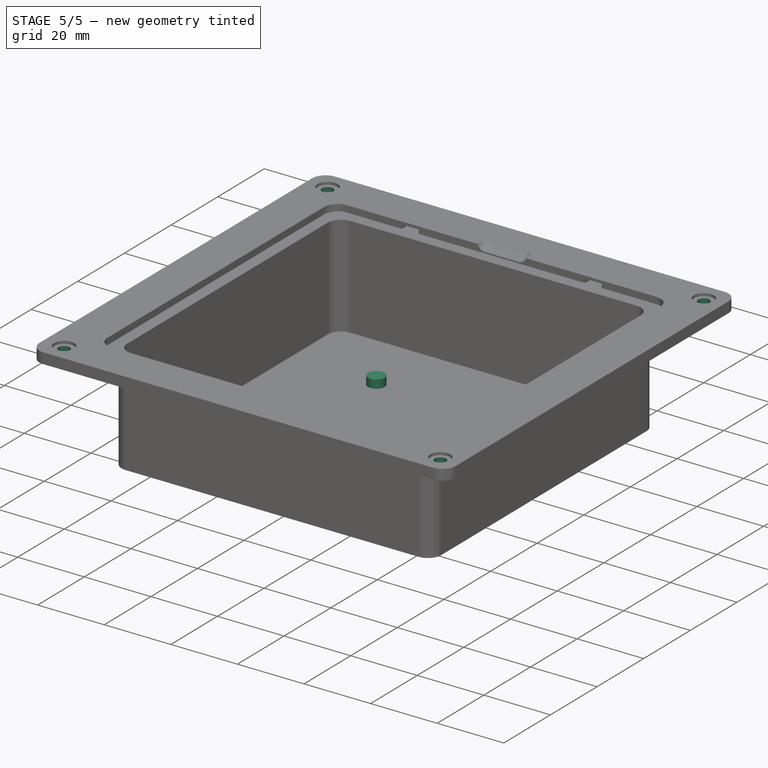
[diagram: stage 5 of 5 — iso view after this stage's code; geometry added in this stage tinted green]
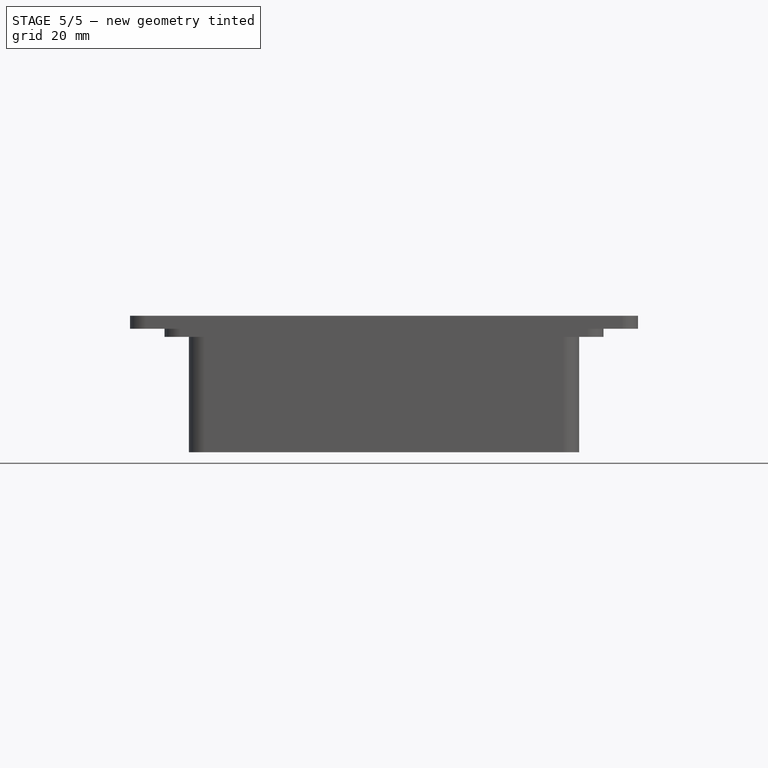
[diagram: stage 5 of 5 — front view after this stage's code; geometry added in this stage tinted green]
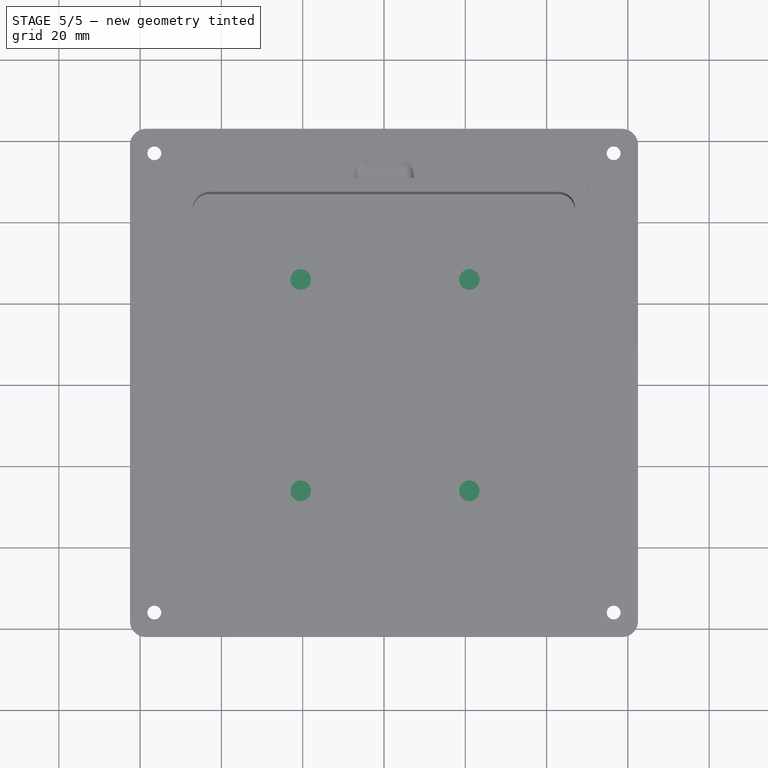
[diagram: stage 5 of 5 — top view after this stage's code; geometry added in this stage tinted green]
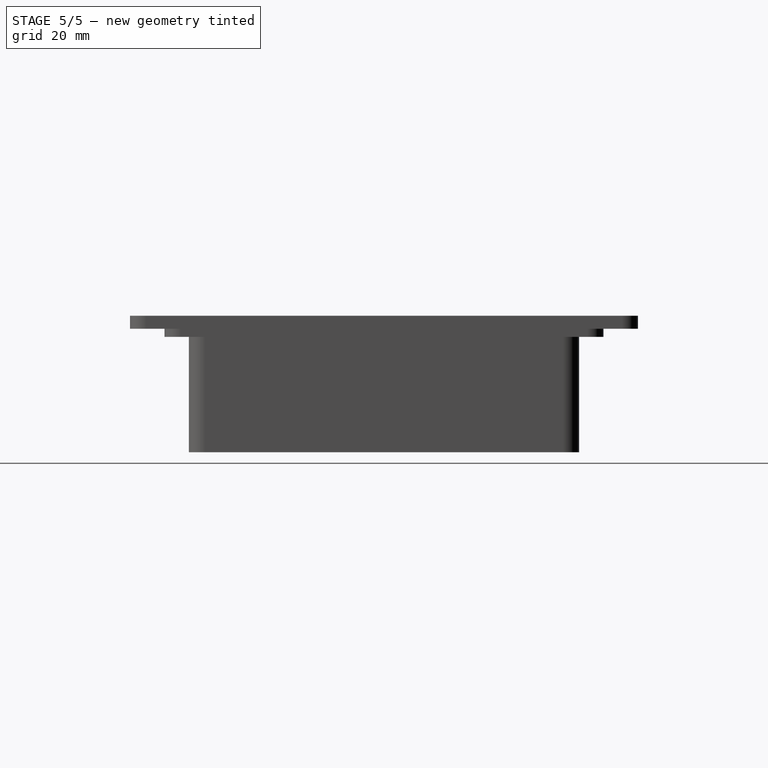
[diagram: stage 5 of 5 — right view after this stage's code; geometry added in this stage tinted green]
FEATURE [Sketcher::SketchObject] Sketch020
  ExternalGeometry = -> [Pocket011]
  FullyConstrained = true
  MapMode = 5
  Placement = pos=(0,0,1.6) rot=(0,0,1;0rad)
  Support = -> [Pocket011]
  sketch-geometry (4):
    g0: Circle CenterX=-56.5 CenterY=56.5 CenterZ=0 NormalX=0 NormalY=0 NormalZ=1 AngleXU=0 Radius=1.7
    g1: Circle CenterX=56.5 CenterY=56.5 CenterZ=0 NormalX=0 NormalY=0 NormalZ=1 AngleXU=0 Radius=1.7
    g2: Circle CenterX=56.5 CenterY=-56.5 CenterZ=0 NormalX=0 NormalY=0 NormalZ=1 AngleXU=0 Radius=1.7
    g3: Circle CenterX=-56.5 CenterY=-56.5 CenterZ=0 NormalX=0 NormalY=0 NormalZ=1 AngleXU=0 Radius=1.7
  constraints (8):
    c: Coincident(g0,g-3)
    c: Coincident(g1,g-4)
    c: Coincident(g2,g-6)
    c: Coincident(g3,g-5)
    c: Equal(g2,g3)
    c: Equal(g3,g1)
    c: Equal(g1,g0)
    c: Diameter(g0) = 3.4
FEATURE [PartDesign::Pocket] Pocket012  label="FurosM3"
  BaseFeature = -> Pocket011
  Direction = (0,0,-1)
  Length = 5
  Length2 = 5
  Profile = -> Sketch020
  ReferenceAxis = -> Sketch020 [N_Axis]
  Type = 2
FEATURE [PartDesign::Body] Body001
  Group = -> [Sketch022,Pad006,Sketch023,Pocket014,Sketch024,Pocket001,Sketch025,Pocket015,Sketch026,Pad007,LinearPattern,Fillet001,Fillet002,Fillet003]
  Origin = -> Origin001
  Placement = pos=(35,0,-32) rot=(0,1,0;3.14159rad)
  Tip = -> Fillet003
FEATURE [PartDesign::SubShapeBinder] Binder001  label="BinderFurosTraseiros"
  BindCopyOnChange = 0
  BindMode = 0
  ClaimChildren = false
  Context = -> Body [Binder001.]
  Fuse = false
  MakeFace = true
  OffsetFill = false
  OffsetIntersection = false
  OffsetJoinType = 0
  OffsetOpenResult = false
  PartialLoad = false
  Relative = true
  Support = -> [Body001[Fillet003.Face22,Fillet003.Face23]]
  _Version = 2
FEATURE [Sketcher::SketchObject] Sketch027
  ExternalGeometry = -> [Binder001]
  FullyConstrained = true
  MapMode = 5
  Placement = pos=(0,0,-30.74) rot=(0,0,1;0rad)
  Support = -> [Pocket012]
  sketch-geometry (4):
    g0: Circle CenterX=21 CenterY=-26 CenterZ=0 NormalX=0 NormalY=0 NormalZ=1 AngleXU=0 Radius=2.5
    g1: Circle CenterX=-20.5 CenterY=-26 CenterZ=0 NormalX=0 NormalY=0 NormalZ=1 AngleXU=0 Radius=2.5
    g2: Circle CenterX=21 CenterY=26 CenterZ=0 NormalX=0 NormalY=0 NormalZ=1 AngleXU=0 Radius=2.5
    g3: Circle CenterX=-20.5 CenterY=26 CenterZ=0 NormalX=0 NormalY=0 NormalZ=1 AngleXU=0 Radius=2.5
  constraints (8):
    c: Coincident(g0,g-5)
    c: Coincident(g1,g-6)
    c: Coincident(g2,g-3)
    c: Coincident(g3,g-4)
    c: Equal(g3,g2)
    c: Equal(g2,g1)
    c: Equal(g1,g0)
    c: Diameter(g2) = 5
FEATURE [PartDesign::Pad] Pad008  label="PorcasFurosTraseiros"
  BaseFeature = -> Pocket012
  Direction = (0,0,1)
  Length = 2.5
  Length2 = 10
  Profile = -> Sketch027
  ReferenceAxis = -> Sketch027 [N_Axis]
  Type = 0
FEATURE [Sketcher::SketchObject] Sketch028
  ExternalGeometry = -> [Binder001]
  FullyConstrained = true
  MapMode = 5
  Placement = pos=(0,0,-32) rot=(1,0,0;3.14159rad)
  Support = -> [Pad008]
  sketch-geometry (4):
    g0: Circle CenterX=21 CenterY=-26 CenterZ=0 NormalX=0 NormalY=0 NormalZ=1 AngleXU=0 Radius=1.1
    g1: Circle CenterX=-20.5 CenterY=-26 CenterZ=0 NormalX=0 NormalY=0 NormalZ=1 AngleXU=0 Radius=1.1
    g2: Circle CenterX=21 CenterY=26 CenterZ=0 NormalX=0 NormalY=0 NormalZ=1 AngleXU=0 Radius=1.1
    g3: Circle CenterX=-20.5 CenterY=26 CenterZ=0 NormalX=0 NormalY=0 NormalZ=1 AngleXU=0 Radius=1.1
  constraints (8):
    c: Coincident(g0,g-5)
    c: Coincident(g1,g-6)
    c: Coincident(g2,g-3)
    c: Coincident(g3,g-4)
    c: Equal(g2,g3)
    c: Equal(g3,g0)
    c: Equal(g0,g1)
    c: Diameter(g0) = 2.2
FEATURE [PartDesign::Pocket] Pocket016  label="FurosTraseiros"
  BaseFeature = -> Pad008
  Direction = (0,0,1)
  Length = 3
  Length2 = 5
  Profile = -> Sketch028
  ReferenceAxis = -> Sketch028 [N_Axis]
  Type = 0
FEATURE [Sketcher::SketchObject] Sketch029
  ExternalGeometry = -> [Pocket016]
  FullyConstrained = true
  MapMode = 5
  Placement = pos=(0,0,-1.6) rot=(1,0,0;3.14159rad)
  Support = -> [Pocket016]
  sketch-geometry (4):
    g0: Circle CenterX=56.5 CenterY=-56.5 CenterZ=0 NormalX=0 NormalY=0 NormalZ=1 AngleXU=0 Radius=4
    g1: Circle CenterX=-56.5 CenterY=-56.5 CenterZ=0 NormalX=0 NormalY=0 NormalZ=1 AngleXU=0 Radius=4
    g2: Circle CenterX=56.5 CenterY=56.5 CenterZ=0 NormalX=0 NormalY=0 NormalZ=1 AngleXU=0 Radius=4
    g3: Circle CenterX=-56.5 CenterY=56.5 CenterZ=0 NormalX=0 NormalY=0 NormalZ=1 AngleXU=0 Radius=4
  constraints (8):
    c: Coincident(g0,g-5)
    c: Coincident(g1,g-6)
    c: Coincident(g2,g-3)
    c: Coincident(g3,g-4)
    c: Equal(g3,g2)
    c: Equal(g2,g0)
    c: Equal(g0,g1)
    c: Diameter(g0) = 8
FEATURE [PartDesign::Pocket] Pocket017
  BaseFeature = -> Pocket016
  Direction = (0,0,1)
  Length = 1
  Length2 = 5
  Profile = -> Sketch029
  ReferenceAxis = -> Sketch029 [N_Axis]
  Type = 0
FEATURE [PartDesign::Body] Body
  Group = -> [Sketch,Pad,Sketch001,Pad001,Sketch002,Pad002,Sketch003,Pocket,Sketch004,Sketch005,Pocket002,Sketch006,Pocket003,Pocket009,Sketch018,Groove,Sketch019,Pocket011,Sketch020,Pocket012,Binder001,Sketch027,Pad008,Sketch028,Pocket016,Sketch029,Pocket017]
  Origin = -> Origin
  Tip = -> Pocket017
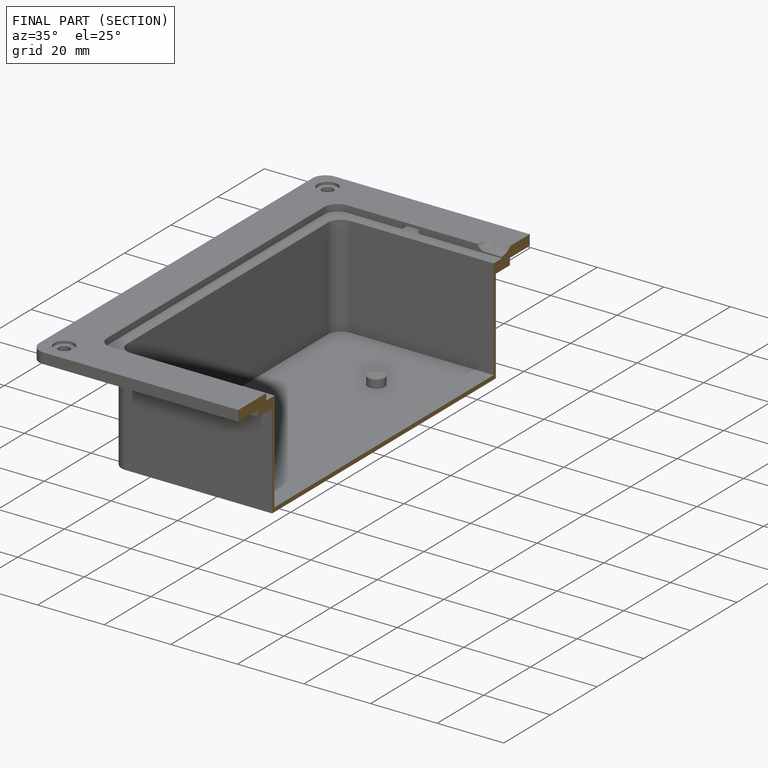
[diagram: finished part — half-section view (interior)]
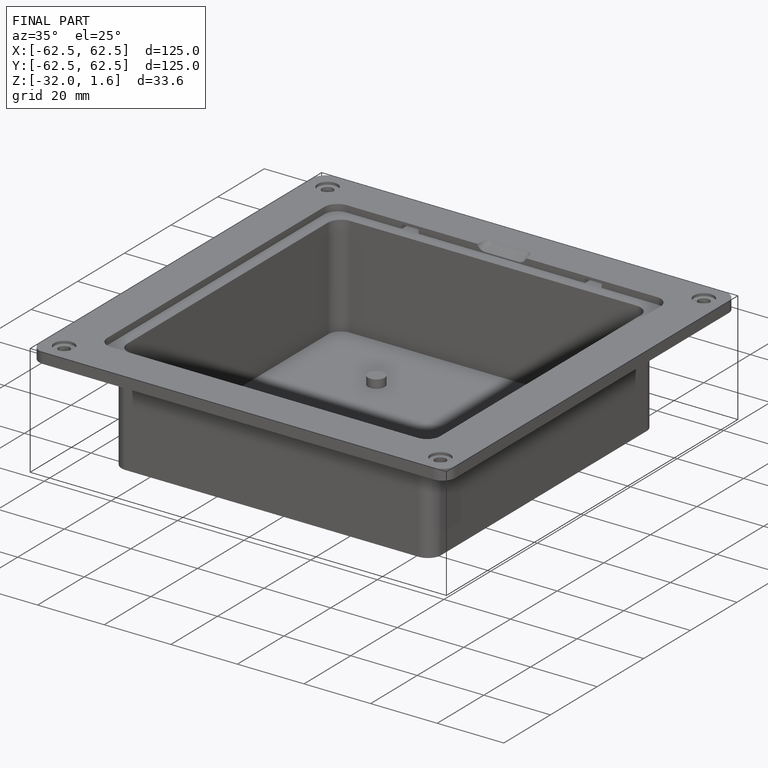
[diagram: finished part — iso view with bounding-box wireframe]
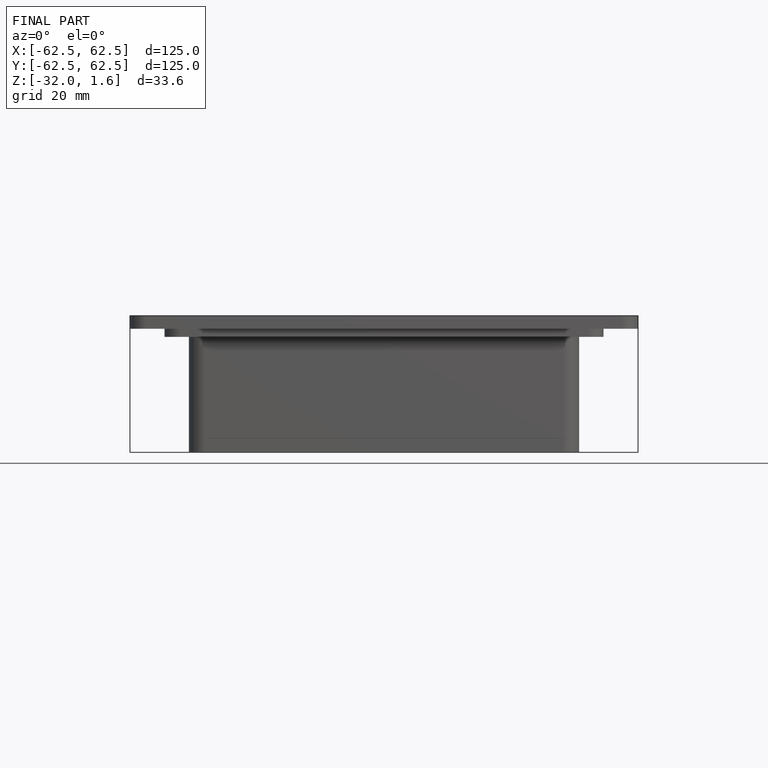
[diagram: finished part — front view with bounding-box wireframe]
